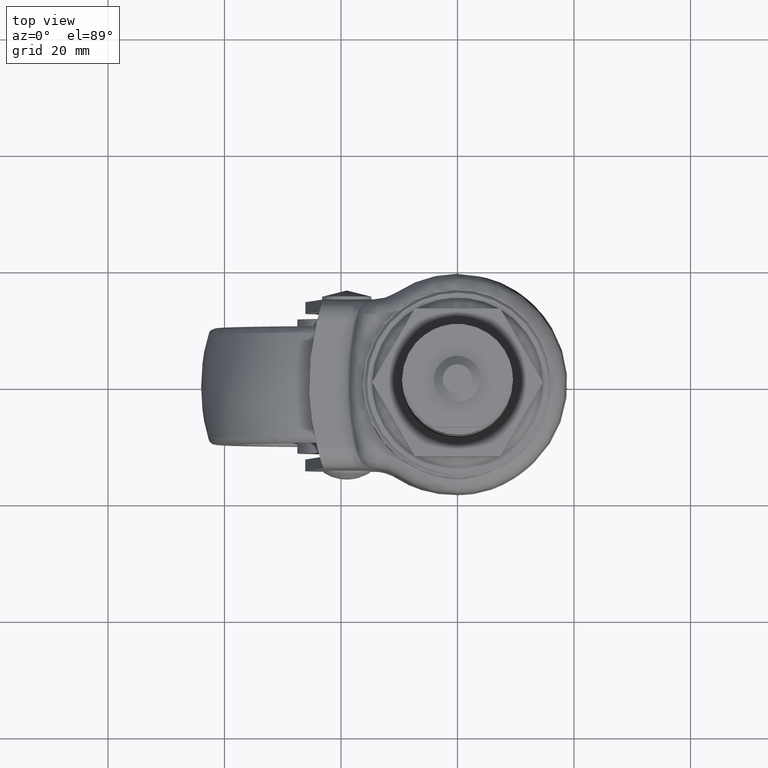
[diagram: clean part render]
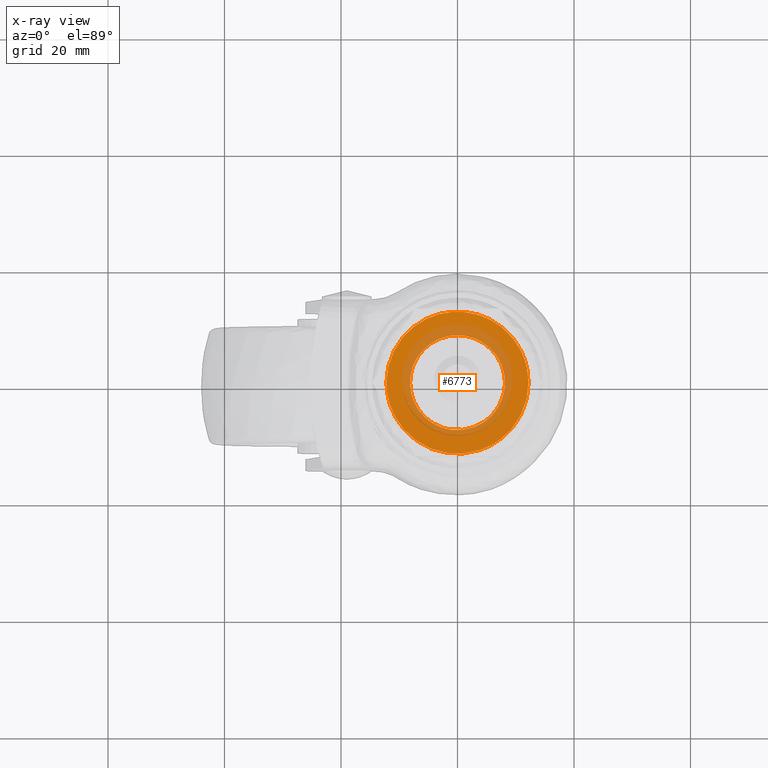
[diagram: x-ray — body ghosted, one internal face saturated and labeled with its STEP entity id]
A machine part, top view, then the same camera in x-ray: the body is ghosted and one INTERNAL B-rep face — a face not visible from any outside direction — is saturated and labeled: STEP entity #6773.
In plain terms, the highlighted face is a freeform B-spline surface patch.
Its self-contained STEP definition (entity closure, byte-faithful):
#4900=CARTESIAN_POINT('',(0.071121264434776,8.149689672971928,-1.898178758164915));
#4901=VERTEX_POINT('',#4900);
#4907=CARTESIAN_POINT('',(-8.149999999999999,7.105427E-015,-1.898178758164915));
#4908=VERTEX_POINT('',#4907);
#4909=CARTESIAN_POINT('',(0.071121264434776,8.149689672971928,-1.898178758164915));
#4910=CARTESIAN_POINT('',(0.035561309311753,8.150000000000004,-1.898178758164915));
#4911=CARTESIAN_POINT('',(0.0,8.150000000000006,-1.898178758164915));
#4912=CARTESIAN_POINT('',(-8.149999999999999,8.150000000000006,-1.898178758164915));
#4913=CARTESIAN_POINT('',(-8.149999999999999,7.105427E-015,-1.898178758164915));
#4921=(BOUNDED_CURVE()B_SPLINE_CURVE(2,(#4909,#4910,#4911,#4912,#4913),.UNSPECIFIED.,.F.,.U.)B_SPLINE_CURVE_WITH_KNOTS((3,2,3),(0.248460105659695,0.250000000000000,0.500000000000000),.UNSPECIFIED.)CURVE()GEOMETRIC_REPRESENTATION_ITEM()RATIONAL_B_SPLINE_CURVE((0.996414028088098,0.998195901560141,1.0,0.707106781186548,1.0))REPRESENTATION_ITEM(''));
#4922=EDGE_CURVE('',#4901,#4908,#4921,.T.);
#4924=CARTESIAN_POINT('',(-1.011643217053294,-8.086969642665286,-1.898178758164915));
#4925=VERTEX_POINT('',#4924);
#4926=CARTESIAN_POINT('',(-8.149999999999999,7.105427E-015,-1.898178758164915));
#4927=CARTESIAN_POINT('',(-8.149999999999999,-7.193993591040282,-1.898178758164914));
#4928=CARTESIAN_POINT('',(-1.011643217053294,-8.086969642665288,-1.898178758164915));
#4936=(BOUNDED_CURVE()B_SPLINE_CURVE(2,(#4926,#4927,#4928),.UNSPECIFIED.,.F.,.U.)B_SPLINE_CURVE_WITH_KNOTS((3,3),(0.500000000000000,0.728526071025017),.UNSPECIFIED.)CURVE()GEOMETRIC_REPRESENTATION_ITEM()RATIONAL_B_SPLINE_CURVE((1.0,0.732265053898765,0.954005430266409))REPRESENTATION_ITEM(''));
#4937=EDGE_CURVE('',#4908,#4925,#4936,.T.);
#4987=CARTESIAN_POINT('',(8.149999999999999,7.105427E-015,-1.898178758164915));
#4988=VERTEX_POINT('',#4987);
#4989=CARTESIAN_POINT('',(-1.011643217053294,-8.086969642665286,-1.898178758164915));
#4990=CARTESIAN_POINT('',(-0.507785159501866,-8.149999999999992,-1.898178758164915));
#4991=CARTESIAN_POINT('',(0.0,-8.149999999999992,-1.898178758164915));
#4992=CARTESIAN_POINT('',(8.149999999999999,-8.149999999999992,-1.898178758164915));
#4993=CARTESIAN_POINT('',(8.149999999999999,7.105427E-015,-1.898178758164915));
#5001=(BOUNDED_CURVE()B_SPLINE_CURVE(2,(#4989,#4990,#4991,#4992,#4993),.UNSPECIFIED.,.F.,.U.)B_SPLINE_CURVE_WITH_KNOTS((3,2,3),(0.728526071025016,0.750000000000000,1.0),.UNSPECIFIED.)CURVE()GEOMETRIC_REPRESENTATION_ITEM()RATIONAL_B_SPLINE_CURVE((0.954005430266407,0.974841727287782,1.0,0.707106781186548,1.0))REPRESENTATION_ITEM(''));
#5002=EDGE_CURVE('',#4925,#4988,#5001,.T.);
#5004=CARTESIAN_POINT('',(8.149999999999999,7.105427E-015,-1.898178758164915));
#5005=CARTESIAN_POINT('',(8.149999999999999,8.079186366105139,-1.898178758164915));
#5006=CARTESIAN_POINT('',(0.071121264434776,8.149689672971928,-1.898178758164915));
#5014=(BOUNDED_CURVE()B_SPLINE_CURVE(2,(#5004,#5005,#5006),.UNSPECIFIED.,.F.,.U.)B_SPLINE_CURVE_WITH_KNOTS((3,3),(0.0,0.248460105659695),.UNSPECIFIED.)CURVE()GEOMETRIC_REPRESENTATION_ITEM()RATIONAL_B_SPLINE_CURVE((1.0,0.708910879626406,0.996414028088098))REPRESENTATION_ITEM(''));
#5015=EDGE_CURVE('',#4988,#4901,#5014,.T.);
#6065=CARTESIAN_POINT('',(3.800158213723390,-11.592057163576539,-1.898178758164920));
#6066=VERTEX_POINT('',#6065);
#6067=CARTESIAN_POINT('',(-12.199057000000099,0.0,-1.898178758164915));
#6068=VERTEX_POINT('',#6067);
#6069=CARTESIAN_POINT('',(3.800158213723390,-11.592057163576538,-1.898178758164920));
#6070=CARTESIAN_POINT('',(1.948557193962354,-12.199057000000106,-1.898178758164915));
#6071=CARTESIAN_POINT('',(0.0,-12.199057000000099,-1.898178758164915));
#6072=CARTESIAN_POINT('',(-12.199057000000099,-12.199057000000099,-1.898178758164915));
#6073=CARTESIAN_POINT('',(-12.199057000000099,0.0,-1.898178758164915));
#6081=(BOUNDED_CURVE()B_SPLINE_CURVE(2,(#6069,#6070,#6071,#6072,#6073),.UNSPECIFIED.,.F.,.U.)B_SPLINE_CURVE_WITH_KNOTS((3,2,3),(0.697031393978199,0.750000000000000,1.0),.UNSPECIFIED.)CURVE()GEOMETRIC_REPRESENTATION_ITEM()RATIONAL_B_SPLINE_CURVE((0.902183241057213,0.937943417944852,1.0,0.707106781186547,1.0))REPRESENTATION_ITEM(''));
#6082=EDGE_CURVE('',#6066,#6068,#6081,.T.);
#6084=CARTESIAN_POINT('',(11.953307639740929,2.436273436929346,-1.898178758164921));
#6085=VERTEX_POINT('',#6084);
#6086=CARTESIAN_POINT('',(-12.199057000000099,0.0,-1.898178758164915));
#6087=CARTESIAN_POINT('',(-12.199057000000099,12.199057000000099,-1.898178758164915));
#6088=CARTESIAN_POINT('',(0.0,12.199057000000099,-1.898178758164915));
#6089=CARTESIAN_POINT('',(9.963497702961064,12.199057000000099,-1.898178758164915));
#6090=CARTESIAN_POINT('',(11.953307639740924,2.436273436929347,-1.898178758164921));
#6098=(BOUNDED_CURVE()B_SPLINE_CURVE(2,(#6086,#6087,#6088,#6089,#6090),.UNSPECIFIED.,.F.,.U.)B_SPLINE_CURVE_WITH_KNOTS((3,2,3),(0.0,0.250000000000000,0.465767038499570),.UNSPECIFIED.)CURVE()GEOMETRIC_REPRESENTATION_ITEM()RATIONAL_B_SPLINE_CURVE((1.0,0.707106781186547,1.0,0.747213190320059,0.930770871011281))REPRESENTATION_ITEM(''));
#6099=EDGE_CURVE('',#6068,#6085,#6098,.T.);
#6183=CARTESIAN_POINT('',(12.199057000000099,0.0,-1.898178758164915));
#6184=VERTEX_POINT('',#6183);
#6185=CARTESIAN_POINT('',(12.199057000000099,0.0,-1.898178758164915));
#6186=CARTESIAN_POINT('',(12.199057000000099,-8.838693909656344,-1.898178758164916));
#6187=CARTESIAN_POINT('',(3.800158213723390,-11.592057163576532,-1.898178758164920));
#6195=(BOUNDED_CURVE()B_SPLINE_CURVE(2,(#6185,#6186,#6187),.UNSPECIFIED.,.F.,.U.)B_SPLINE_CURVE_WITH_KNOTS((3,3),(0.500000000000000,0.697031393978198),.UNSPECIFIED.)CURVE()GEOMETRIC_REPRESENTATION_ITEM()RATIONAL_B_SPLINE_CURVE((1.0,0.769163363241697,0.902183241057212))REPRESENTATION_ITEM(''));
#6196=EDGE_CURVE('',#6184,#6066,#6195,.T.);
#6228=CARTESIAN_POINT('',(11.953307639740927,2.436273436929346,-1.898178758164920));
#6229=CARTESIAN_POINT('',(12.199057000000103,1.230531211630383,-1.898178758164915));
#6230=CARTESIAN_POINT('',(12.199057000000099,0.0,-1.898178758164915));
#6238=(BOUNDED_CURVE()B_SPLINE_CURVE(2,(#6228,#6229,#6230),.UNSPECIFIED.,.F.,.U.)B_SPLINE_CURVE_WITH_KNOTS((3,3),(0.465767038499570,0.500000000000000),.UNSPECIFIED.)CURVE()GEOMETRIC_REPRESENTATION_ITEM()RATIONAL_B_SPLINE_CURVE((0.930770871011281,0.959893590866488,1.0))REPRESENTATION_ITEM(''));
#6239=EDGE_CURVE('',#6085,#6184,#6238,.T.);
#6756=CARTESIAN_POINT('',(-13.417742430812590,-13.417710555075759,-1.898178758164915));
#6757=CARTESIAN_POINT('',(13.417741558268039,-13.417710555075759,-1.898178758164915));
#6758=CARTESIAN_POINT('',(-13.417742430812590,13.417701593509451,-1.898178758164915));
#6759=CARTESIAN_POINT('',(13.417741558268039,13.417701593509451,-1.898178758164915));
#6760=B_SPLINE_SURFACE_WITH_KNOTS('',1,1,((#6756,#6758),(#6757,#6759)),.UNSPECIFIED.,.F.,.F.,.U.,(2,2),(2,2),(0.0,26.835483989080629),(0.0,26.835412148585210),.UNSPECIFIED.);
#6761=ORIENTED_EDGE('',*,*,#6082,.F.);
#6762=ORIENTED_EDGE('',*,*,#6196,.F.);
#6763=ORIENTED_EDGE('',*,*,#6239,.F.);
#6764=ORIENTED_EDGE('',*,*,#6099,.F.);
#6765=EDGE_LOOP('',(#6761,#6762,#6763,#6764));
#6766=FACE_OUTER_BOUND('',#6765,.T.);
#6767=ORIENTED_EDGE('',*,*,#5015,.F.);
#6768=ORIENTED_EDGE('',*,*,#5002,.F.);
#6769=ORIENTED_EDGE('',*,*,#4937,.F.);
#6770=ORIENTED_EDGE('',*,*,#4922,.F.);
#6771=EDGE_LOOP('',(#6767,#6768,#6769,#6770));
#6772=FACE_BOUND('',#6771,.T.);
#6773=ADVANCED_FACE('',(#6766,#6772),#6760,.T.);